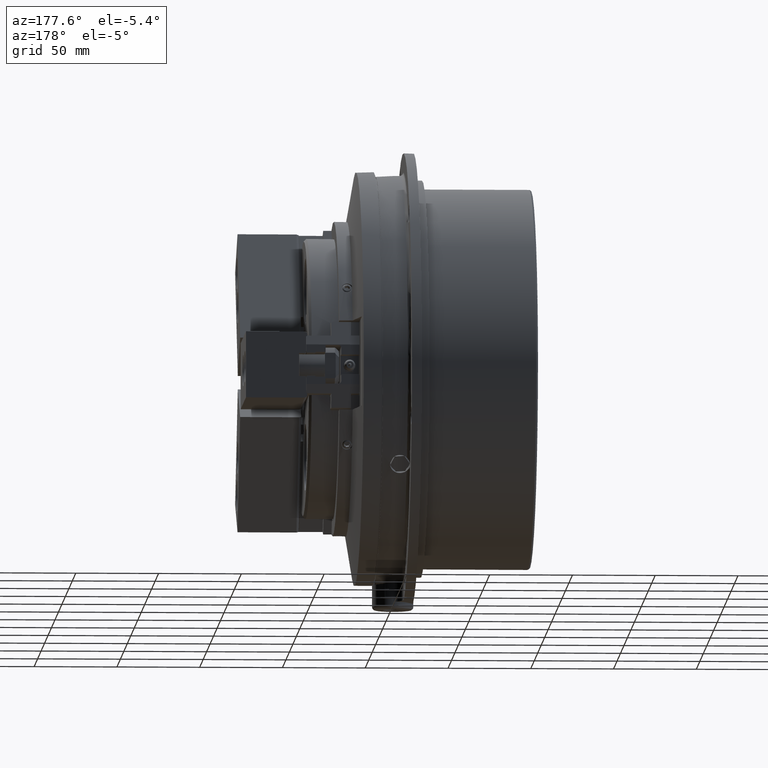
[diagram: clean part render]
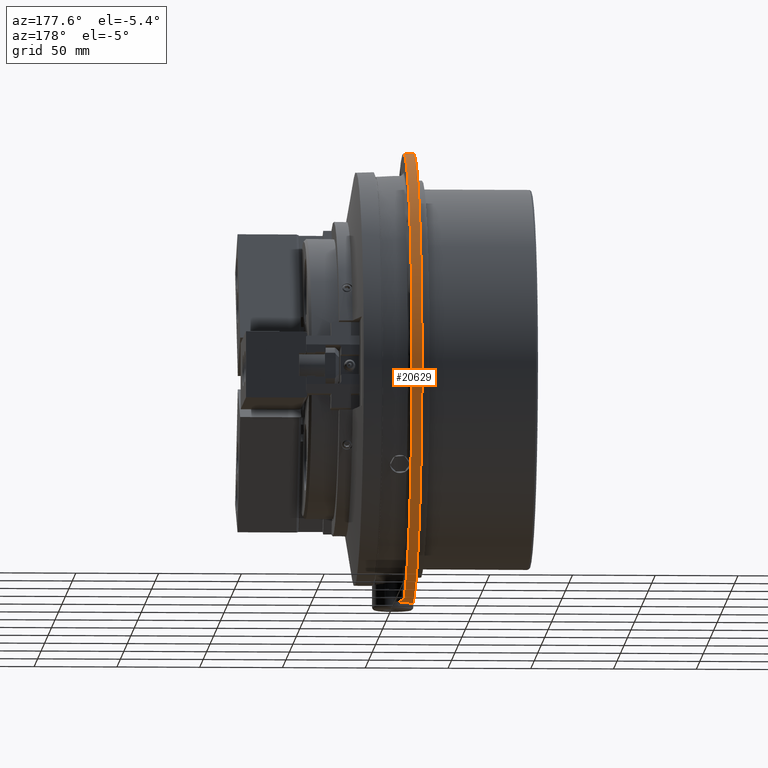
[diagram: same view with one face highlighted and labeled with its STEP entity id]
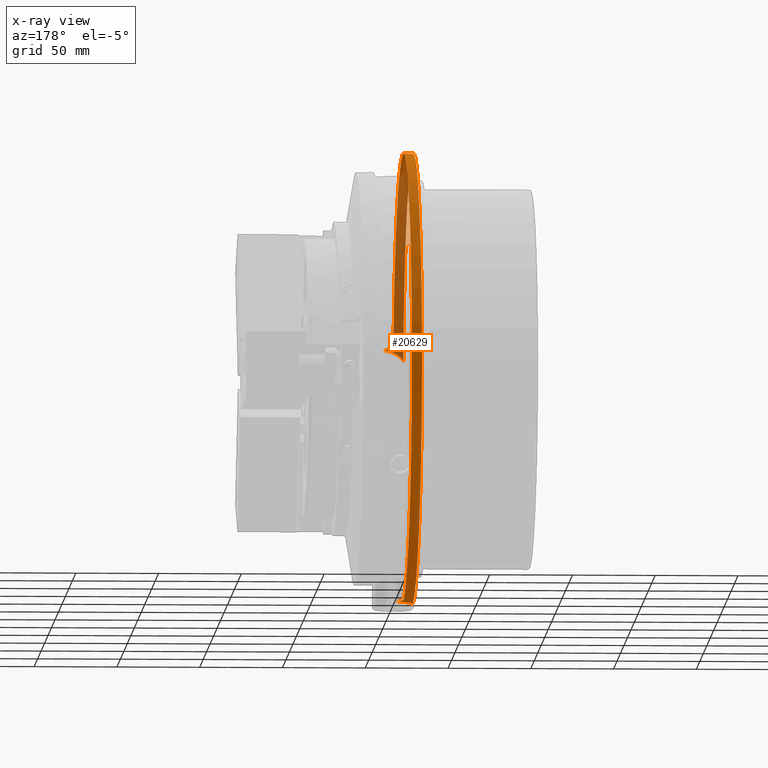
[diagram: x-ray of the same camera — body ghosted, the highlighted face saturated]
A machine part, auxiliary view. The second image highlights one B-rep face of the part: STEP entity #20629.
The next image is the same camera in x-ray: the body ghosted, the highlighted face saturated — about 29% of this face is hidden behind the body in this view.
In plain terms, the highlighted cylindrical surface (partial cylindrical patch) has radius 136.5 mm, axis along (1, 0, 0).
Its self-contained STEP definition (entity closure, byte-faithful):
#280=CYLINDRICAL_SURFACE('',#22048,136.5);
#577=B_SPLINE_CURVE_WITH_KNOTS('',3,(#31600,#31601,#31602,#31603,#31604,
#31605,#31606,#31607,#31608,#31609,#31610,#31611,#31612,#31613,#31614,#31615,
#31616,#31617,#31618,#31619,#31620,#31621,#31622,#31623,#31624,#31625,#31626,
#31627,#31628,#31629,#31630,#31631,#31632,#31633,#31634,#31635,#31636,#31637,
#31638,#31639,#31640,#31641,#31642,#31643,#31644,#31645,#31646,#31647,#31648,
#31649),.UNSPECIFIED.,.F.,.F.,(4,2,1,2,2,2,2,1,2,1,2,2,1,2,2,1,2,2,2,1,
2,1,2,2,1,1,2,2,1,4),(0.,0.06250000000001,0.12500000000002,0.18750000000003,
0.25000000000004,0.25781250000004,0.26562500000004,0.281250000000041,0.31250000000004,
0.375000000000039,0.437500000000039,0.500000000000038,0.515625000000038,
0.523437500000037,0.531250000000037,0.562500000000035,0.593750000000033,
0.609375000000033,0.617187500000032,0.625000000000032,0.687500000000026,
0.75000000000002,0.812500000000015,0.843750000000012,0.85937500000001,0.86718750000001,
0.871093750000009,0.875000000000009,0.937500000000004,1.),.UNSPECIFIED.);
#589=B_SPLINE_CURVE_WITH_KNOTS('',3,(#32045,#32046,#32047,#32048,#32049,
#32050,#32051,#32052,#32053,#32054,#32055,#32056,#32057,#32058,#32059,#32060,
#32061,#32062,#32063,#32064,#32065,#32066,#32067,#32068,#32069,#32070,#32071,
#32072,#32073,#32074,#32075,#32076,#32077,#32078,#32079,#32080,#32081,#32082),
 .UNSPECIFIED.,.F.,.F.,(4,2,1,2,2,2,1,1,1,1,2,2,1,1,2,1,1,1,2,1,2,2,1,1,
1,4),(0.,0.0624999999999924,0.0781249999999902,0.0859374999999898,0.0937499999999894,
0.124999999999986,0.187499999999981,0.249999999999975,0.312499999999969,
0.374999999999963,0.437499999999957,0.445312499999957,0.453124999999957,
0.468749999999957,0.499999999999955,0.562499999999953,0.62499999999995,
0.687499999999948,0.749999999999945,0.781249999999944,0.796874999999945,
0.804687499999945,0.812499999999946,0.874999999999964,0.937499999999982,
1.),.UNSPECIFIED.);
#590=B_SPLINE_CURVE_WITH_KNOTS('',3,(#32084,#32085,#32086,#32087,#32088,
#32089,#32090,#32091,#32092,#32093,#32094,#32095,#32096,#32097,#32098,#32099,
#32100,#32101,#32102,#32103,#32104,#32105,#32106,#32107,#32108,#32109,#32110,
#32111,#32112,#32113,#32114,#32115,#32116,#32117,#32118,#32119,#32120,#32121,
#32122,#32123,#32124,#32125,#32126,#32127,#32128,#32129,#32130,#32131,#32132,
#32133),.UNSPECIFIED.,.F.,.F.,(4,1,2,1,2,2,2,1,2,1,2,2,2,2,2,2,2,1,1,2,
2,2,1,2,1,1,2,2,1,4),(0.,0.0312500000000149,0.0625000000000298,0.125000000000059,
0.187500000000089,0.203125000000095,0.210937500000098,0.2187500000001,0.250000000000102,
0.312500000000103,0.375000000000105,0.406250000000104,0.414062500000103,
0.421875000000103,0.437500000000098,0.500000000000088,0.562500000000077,
0.593750000000071,0.609375000000067,0.617187500000066,0.625000000000065,
0.687500000000048,0.75000000000003,0.812500000000013,0.82812500000001,0.835937500000009,
0.843750000000007,0.875000000000005,0.937500000000003,1.),.UNSPECIFIED.);
#591=B_SPLINE_CURVE_WITH_KNOTS('',3,(#32137,#32138,#32139,#32140,#32141,
#32142,#32143,#32144,#32145,#32146,#32147,#32148,#32149,#32150,#32151,#32152,
#32153,#32154,#32155,#32156,#32157,#32158,#32159,#32160,#32161,#32162,#32163,
#32164,#32165,#32166,#32167,#32168,#32169,#32170,#32171,#32172,#32173,#32174,
#32175,#32176,#32177,#32178,#32179,#32180,#32181,#32182,#32183,#32184,#32185,
#32186),.UNSPECIFIED.,.F.,.F.,(4,2,2,2,1,2,2,2,1,2,2,1,2,2,2,1,2,1,2,2,
2,1,2,2,2,2,1,1,4),(0.,0.0625000000000052,0.12500000000001,0.187500000000016,
0.203125000000018,0.210937500000019,0.21875000000002,0.250000000000026,
0.312500000000036,0.375000000000046,0.406250000000052,0.421875000000055,
0.429687500000056,0.437500000000057,0.500000000000061,0.562500000000065,
0.625000000000069,0.640625000000069,0.648437500000069,0.656250000000068,
0.687500000000063,0.750000000000054,0.812500000000044,0.84375000000004,
0.859375000000038,0.867187500000037,0.875000000000035,0.937500000000017,
1.),.UNSPECIFIED.);
#4850=ORIENTED_EDGE('',*,*,#10607,.T.);
#4851=ORIENTED_EDGE('',*,*,#10622,.F.);
#4852=ORIENTED_EDGE('',*,*,#10623,.T.);
#4853=ORIENTED_EDGE('',*,*,#10624,.F.);
#4854=ORIENTED_EDGE('',*,*,#10625,.T.);
#4855=ORIENTED_EDGE('',*,*,#10572,.F.);
#10572=EDGE_CURVE('',#13483,#13484,#577,.T.);
#10607=EDGE_CURVE('',#13483,#13510,#15519,.T.);
#10622=EDGE_CURVE('',#13523,#13510,#589,.T.);
#10623=EDGE_CURVE('',#13523,#13524,#590,.T.);
#10624=EDGE_CURVE('',#13525,#13524,#15531,.T.);
#10625=EDGE_CURVE('',#13525,#13484,#591,.T.);
#13483=VERTEX_POINT('',#31599);
#13484=VERTEX_POINT('',#31650);
#13510=VERTEX_POINT('',#32013);
#13523=VERTEX_POINT('',#32083);
#13524=VERTEX_POINT('',#32134);
#13525=VERTEX_POINT('',#32136);
#15519=CIRCLE('',#22032,136.5);
#15531=CIRCLE('',#22049,136.5);
#16330=EDGE_LOOP('',(#4850,#4851,#4852,#4853,#4854,#4855));
#18082=FACE_BOUND('',#16330,.T.);
#20629=ADVANCED_FACE('',(#18082),#280,.T.);
#22032=AXIS2_PLACEMENT_3D('',#32012,#24321,#24322);
#22048=AXIS2_PLACEMENT_3D('',#32044,#24356,#24357);
#22049=AXIS2_PLACEMENT_3D('',#32135,#24358,#24359);
#24321=DIRECTION('',(1.,0.,0.));
#24322=DIRECTION('',(0.,0.,-1.));
#24356=DIRECTION('',(1.,0.,0.));
#24357=DIRECTION('',(0.,0.,-1.));
#24358=DIRECTION('',(1.,0.,0.));
#24359=DIRECTION('',(0.,0.,-1.));
#31599=CARTESIAN_POINT('',(-66.,3.5,-136.455120827334));
#31600=CARTESIAN_POINT('',(-66.,3.5,-136.455120827325));
#31601=CARTESIAN_POINT('',(-65.9053817846699,3.82440530970329,-136.446800006699));
#31602=CARTESIAN_POINT('',(-65.7982943017893,4.14270983968721,-136.437478911515));
#31603=CARTESIAN_POINT('',(-65.5599603115382,4.76750572554841,-136.417075858203));
#31604=CARTESIAN_POINT('',(-65.2974639836781,5.38048681518573,-136.394911647739));
#31605=CARTESIAN_POINT('',(-64.9872161752303,5.97013513054833,-136.369685619437));
#31606=CARTESIAN_POINT('',(-64.6529153497794,6.54803995930728,-136.343158398625));
#31607=CARTESIAN_POINT('',(-64.4737397896507,6.83112128159731,-136.329243928359));
#31608=CARTESIAN_POINT('',(-64.2582683010641,7.14280785213542,-136.31299093855));
#31609=CARTESIAN_POINT('',(-64.2341336547172,7.17734536844713,-136.311176735753));
#31610=CARTESIAN_POINT('',(-64.185475759858,7.24623086479653,-136.307532175877));
#31611=CARTESIAN_POINT('',(-64.1609386785579,7.28059781929191,-136.30570079365));
#31612=CARTESIAN_POINT('',(-64.0868835563718,7.38321731110237,-136.30019367541));
#31613=CARTESIAN_POINT('',(-63.9369458740853,7.58660940484722,-136.289123574838));
#31614=CARTESIAN_POINT('',(-63.7815799105731,7.78451673431412,-136.277907732336));
#31615=CARTESIAN_POINT('',(-63.4637180499607,8.17313073465881,-136.255338540382));
#31616=CARTESIAN_POINT('',(-63.0209124032886,8.67210455040138,-136.224880305094));
#31617=CARTESIAN_POINT('',(-62.5406927825443,9.13333038013077,-136.194278189737));
#31618=CARTESIAN_POINT('',(-62.0416843799146,9.57561848510378,-136.163896338508));
#31619=CARTESIAN_POINT('',(-61.7827866321229,9.78729450600297,-136.14881521801));
#31620=CARTESIAN_POINT('',(-61.447138536497,10.0397800754048,-136.130288252563));
#31621=CARTESIAN_POINT('',(-61.3455407323146,10.1146160953705,-136.124754542407));
#31622=CARTESIAN_POINT('',(-61.242575442485,10.1880754576995,-136.119262831835));
#31623=CARTESIAN_POINT('',(-61.1736264537736,10.2367408912009,-136.115611637095));
#31624=CARTESIAN_POINT('',(-61.1390106193209,10.260911645658,-136.11379162519));
#31625=CARTESIAN_POINT('',(-60.9654219648028,10.3808180610527,-136.104731257044));
#31626=CARTESIAN_POINT('',(-60.6840577602138,10.5668646058364,-136.090469437396));
#31627=CARTESIAN_POINT('',(-60.3954694229247,10.741342130641,-136.076745727517));
#31628=CARTESIAN_POINT('',(-60.1763134425969,10.8678547669519,-136.06668042693));
#31629=CARTESIAN_POINT('',(-60.102808855661,10.9093011713589,-136.063363242312));
#31630=CARTESIAN_POINT('',(-59.9918711133895,10.9703811490105,-136.058447568167));
#31631=CARTESIAN_POINT('',(-59.9547852227353,10.9905555405475,-136.056819344102));
#31632=CARTESIAN_POINT('',(-59.8804986071865,11.0304811440682,-136.053588290988));
#31633=CARTESIAN_POINT('',(-59.5455702690422,11.2083061874212,-136.039157408589));
#31634=CARTESIAN_POINT('',(-59.2049393061998,11.3696999183477,-136.025722417955));
#31635=CARTESIAN_POINT('',(-58.590590212606,11.6313348724222,-136.003600263542));
#31636=CARTESIAN_POINT('',(-57.9674571548471,11.8676796003961,-135.983240171088));
#31637=CARTESIAN_POINT('',(-57.3268650167383,12.0537904964323,-135.966770354111));
#31638=CARTESIAN_POINT('',(-56.8397881472985,12.1742998698624,-135.956015126744));
#31639=CARTESIAN_POINT('',(-56.676322412607,12.2112868815678,-135.95269626501));
#31640=CARTESIAN_POINT('',(-56.4294405627781,12.2619278986614,-135.94813500547));
#31641=CARTESIAN_POINT('',(-56.3055786926323,12.2860381465689,-135.945958639892));
#31642=CARTESIAN_POINT('',(-56.160330018436,12.3120303110676,-135.943605957951));
#31643=CARTESIAN_POINT('',(-56.0979205443615,12.322709734997,-135.94263803972));
#31644=CARTESIAN_POINT('',(-56.0562785723286,12.3297268524662,-135.94200178074));
#31645=CARTESIAN_POINT('',(-56.0354360160752,12.3331847585307,-135.941688107048));
#31646=CARTESIAN_POINT('',(-55.6810860630791,12.3910508806702,-135.936436795419));
#31647=CARTESIAN_POINT('',(-55.0118048100236,12.4726225649174,-135.928972483786));
#31648=CARTESIAN_POINT('',(-54.3380257258228,12.5,-135.92645070037));
#31649=CARTESIAN_POINT('',(-54.,12.5,-135.92645070037));
#31650=CARTESIAN_POINT('',(-54.,12.5,-135.926450700369));
#32012=CARTESIAN_POINT('',(-66.,0.,0.));
#32013=CARTESIAN_POINT('',(-66.,-134.373546503762,24.));
#32044=CARTESIAN_POINT('',(35.59,0.,0.));
#32045=CARTESIAN_POINT('',(-54.,-133.162494719797,30.));
#32046=CARTESIAN_POINT('',(-54.2902048640479,-133.162494719797,30.));
#32047=CARTESIAN_POINT('',(-54.5811495456789,-133.164391218069,29.991585741061));
#32048=CARTESIAN_POINT('',(-54.9457742043445,-133.169175129318,29.9703322364109));
#32049=CARTESIAN_POINT('',(-55.05523244589,-133.170791376154,29.9631503278835));
#32050=CARTESIAN_POINT('',(-55.1647976686931,-133.172680670827,29.9547514093857));
#32051=CARTESIAN_POINT('',(-55.2378650115084,-133.174001048101,29.9488806784588));
#32052=CARTESIAN_POINT('',(-55.2744232836026,-133.174691927885,29.9458083993852));
#32053=CARTESIAN_POINT('',(-55.4569853203041,-133.178292993821,29.9297919760182));
#32054=CARTESIAN_POINT('',(-55.6024735628524,-133.181645895358,29.9148708865419));
#32055=CARTESIAN_POINT('',(-56.0372778981372,-133.193094366687,29.8638716051095));
#32056=CARTESIAN_POINT('',(-56.6125922810165,-133.212063586235,29.7792546247878));
#32057=CARTESIAN_POINT('',(-57.4625602355324,-133.251262639433,29.6034602686837));
#32058=CARTESIAN_POINT('',(-58.2996611715927,-133.300900374417,29.3792677603117));
#32059=CARTESIAN_POINT('',(-59.1239040318785,-133.360725688101,29.1066570628635));
#32060=CARTESIAN_POINT('',(-59.6647481077755,-133.407267967556,28.8922968272841));
#32061=CARTESIAN_POINT('',(-59.9664921045038,-133.435292873573,28.7623509802009));
#32062=CARTESIAN_POINT('',(-59.9999925019635,-133.438433122396,28.7477789020591));
#32063=CARTESIAN_POINT('',(-60.0668898601085,-133.4447615671,28.7183884690889));
#32064=CARTESIAN_POINT('',(-60.1670074939878,-133.454319184335,28.6739657892546));
#32065=CARTESIAN_POINT('',(-60.3990230498712,-133.477070521422,28.5679628238186));
#32066=CARTESIAN_POINT('',(-60.5951855108315,-133.497328568319,28.4731045126109));
#32067=CARTESIAN_POINT('',(-60.9839479362194,-133.538816245135,28.2781225986302));
#32068=CARTESIAN_POINT('',(-61.4928042554872,-133.596722599222,28.0041154727708));
#32069=CARTESIAN_POINT('',(-62.2281419098772,-133.690801795563,27.5517176011763));
#32070=CARTESIAN_POINT('',(-62.9357758775277,-133.791610815047,27.0582051260524));
#32071=CARTESIAN_POINT('',(-63.3890382442511,-133.863009972886,26.7016894014051));
#32072=CARTESIAN_POINT('',(-63.7219694876067,-133.918032403961,26.4238436080763));
#32073=CARTESIAN_POINT('',(-63.8866801001314,-133.94591204397,26.282304266511));
#32074=CARTESIAN_POINT('',(-64.048732547927,-133.974327053804,26.1367973750843));
#32075=CARTESIAN_POINT('',(-64.1293130328244,-133.988622415584,26.0633782309663));
#32076=CARTESIAN_POINT('',(-64.1561043616503,-133.993403171375,26.0387891068007));
#32077=CARTESIAN_POINT('',(-64.2094745381196,-134.002982296338,25.9894472292578));
#32078=CARTESIAN_POINT('',(-64.4487459624684,-134.046178686637,25.7666155789433));
#32079=CARTESIAN_POINT('',(-64.8855578579332,-134.129276351794,25.3322746079003));
#32080=CARTESIAN_POINT('',(-65.4646775727389,-134.249837420414,24.6856777731363));
#32081=CARTESIAN_POINT('',(-65.8257617587078,-134.332053041204,24.2323176550563));
#32082=CARTESIAN_POINT('',(-66.,-134.373546503767,24.));
#32083=CARTESIAN_POINT('',(-54.,-133.162494719793,30.));
#32084=CARTESIAN_POINT('',(-54.,-133.162494719797,30.));
#32085=CARTESIAN_POINT('',(-54.1006228308508,-133.162494719797,30.));
#32086=CARTESIAN_POINT('',(-54.3009814652012,-133.161355173354,30.0050588265373));
#32087=CARTESIAN_POINT('',(-54.4996053442066,-133.157985323053,30.0200107923264));
#32088=CARTESIAN_POINT('',(-54.7962590230909,-133.151278435906,30.0497498150452));
#32089=CARTESIAN_POINT('',(-55.1883844816089,-133.137939908459,30.1088627046829));
#32090=CARTESIAN_POINT('',(-55.5737304021199,-133.115791318547,30.20661736093));
#32091=CARTESIAN_POINT('',(-55.8124035657495,-133.099091116598,30.2800622664066));
#32092=CARTESIAN_POINT('',(-55.8600295333271,-133.095607796931,30.2953701446358));
#32093=CARTESIAN_POINT('',(-55.9313037542118,-133.090164683578,30.3192699657652));
#32094=CARTESIAN_POINT('',(-55.9550498731891,-133.088312684716,30.3273984803283));
#32095=CARTESIAN_POINT('',(-56.0023661211202,-133.084545103395,30.3439273409345));
#32096=CARTESIAN_POINT('',(-56.1202618583692,-133.074963908864,30.3859434602757));
#32097=CARTESIAN_POINT('',(-56.2361982169473,-133.064575682933,30.4314025339489));
#32098=CARTESIAN_POINT('',(-56.5107624276855,-133.03811010597,30.5469721393265));
#32099=CARTESIAN_POINT('',(-56.867044365682,-132.998740722739,30.7182814497118));
#32100=CARTESIAN_POINT('',(-57.2041021567297,-132.951164953291,30.9233040253267));
#32101=CARTESIAN_POINT('',(-57.4496172132728,-132.912289378106,31.0898147443912));
#32102=CARTESIAN_POINT('',(-57.5302403816547,-132.898797511687,31.147445995879));
#32103=CARTESIAN_POINT('',(-57.6294762279237,-132.881245562847,31.2221846356692));
#32104=CARTESIAN_POINT('',(-57.6492461950825,-132.877700794228,31.2372674229882));
#32105=CARTESIAN_POINT('',(-57.6886309330619,-132.870541894118,31.2677044437068));
#32106=CARTESIAN_POINT('',(-57.7082212934335,-132.866932158442,31.2830399767157));
#32107=CARTESIAN_POINT('',(-57.7666141098435,-132.856025848438,31.3293377089678));
#32108=CARTESIAN_POINT('',(-57.8050694685913,-132.848646540533,31.3606149857714));
#32109=CARTESIAN_POINT('',(-57.9950099176085,-132.811209584916,31.5190350040332));
#32110=CARTESIAN_POINT('',(-58.139503514535,-132.779534578152,31.6522633395775));
#32111=CARTESIAN_POINT('',(-58.4140382759953,-132.712714606522,31.9312692994894));
#32112=CARTESIAN_POINT('',(-58.5440781860069,-132.677569551346,32.0770480640011));
#32113=CARTESIAN_POINT('',(-58.7283299118714,-132.622162665964,32.3050783692103));
#32114=CARTESIAN_POINT('',(-58.817749009557,-132.59378578593,32.4214381747624));
#32115=CARTESIAN_POINT('',(-58.9172910559305,-132.559469709171,32.5613270964183));
#32116=CARTESIAN_POINT('',(-58.9589196058479,-132.544499417958,32.6221721323878));
#32117=CARTESIAN_POINT('',(-58.9864415786931,-132.534460200242,32.6629346511102));
#32118=CARTESIAN_POINT('',(-59.000091811133,-132.529409414773,32.6834222381088));
#32119=CARTESIAN_POINT('',(-59.1218158812686,-132.483716911978,32.8685790787642));
#32120=CARTESIAN_POINT('',(-59.2208845198171,-132.441857790553,33.0368839016276));
#32121=CARTESIAN_POINT('',(-59.4015206136778,-132.355646178222,33.3805979228624));
#32122=CARTESIAN_POINT('',(-59.5646508209158,-132.266940961242,33.7314183393662));
#32123=CARTESIAN_POINT('',(-59.6932603512064,-132.173128053553,34.0962038123429));
#32124=CARTESIAN_POINT('',(-59.7627071310773,-132.112827371412,34.3286054158719));
#32125=CARTESIAN_POINT('',(-59.7827193174896,-132.09461187874,34.3986574319385));
#32126=CARTESIAN_POINT('',(-59.8077457196961,-132.070070414462,34.4927279516675));
#32127=CARTESIAN_POINT('',(-59.8197039701735,-132.057714271378,34.5399869448316));
#32128=CARTESIAN_POINT('',(-59.8488382253046,-132.026786721402,34.6581467436214));
#32129=CARTESIAN_POINT('',(-59.869768589737,-132.001870297621,34.7529264604366));
#32130=CARTESIAN_POINT('',(-59.9255439344245,-131.92659608518,35.0380062776855));
#32131=CARTESIAN_POINT('',(-59.9812340508667,-131.824831573964,35.4200840907665));
#32132=CARTESIAN_POINT('',(-60.,-131.720226202719,35.8060391876294));
#32133=CARTESIAN_POINT('',(-60.,-131.667194091771,36.));
#32134=CARTESIAN_POINT('',(-60.,-131.667194091771,36.));
#32135=CARTESIAN_POINT('',(-60.,0.,0.));
#32136=CARTESIAN_POINT('',(-60.,18.5,-135.240526470433));
#32137=CARTESIAN_POINT('',(-60.,18.5,-135.240526470433));
#32138=CARTESIAN_POINT('',(-60.,18.3030780368888,-135.267464078654));
#32139=CARTESIAN_POINT('',(-59.9903300415029,18.1077249196033,-135.293749036871));
#32140=CARTESIAN_POINT('',(-59.9522786679523,17.7200561533844,-135.345069508042));
#32141=CARTESIAN_POINT('',(-59.9238955239317,17.5277407863214,-135.370104914854));
#32142=CARTESIAN_POINT('',(-59.8484945650627,17.1461397858445,-135.41896799258));
#32143=CARTESIAN_POINT('',(-59.8014775883612,16.9568540033351,-135.44279561863));
#32144=CARTESIAN_POINT('',(-59.7307764360405,16.7221912220155,-135.471844149077));
#32145=CARTESIAN_POINT('',(-59.7086693035092,16.6519385649792,-135.480503467371));
#32146=CARTESIAN_POINT('',(-59.6852026525715,16.5819076782257,-135.489080333582));
#32147=CARTESIAN_POINT('',(-59.6692542274298,16.5352700286233,-135.494779962069));
#32148=CARTESIAN_POINT('',(-59.6611225031848,16.51196059374,-135.49762250915));
#32149=CARTESIAN_POINT('',(-59.6197715595181,16.3957408787519,-135.511765000451));
#32150=CARTESIAN_POINT('',(-59.5845274861476,16.3039433458497,-135.522838536052));
#32151=CARTESIAN_POINT('',(-59.472432189755,16.0320181897678,-135.555367753315));
#32152=CARTESIAN_POINT('',(-59.306033623428,15.6786813850255,-135.596898922897));
#32153=CARTESIAN_POINT('',(-59.106350773823,15.3435039624423,-135.635002067173));
#32154=CARTESIAN_POINT('',(-58.9439723727861,15.099013592759,-135.662362184312));
#32155=CARTESIAN_POINT('',(-58.887739859015,15.0186676006439,-135.671279083972));
#32156=CARTESIAN_POINT('',(-58.800180113841,14.899904178256,-135.684355920916));
#32157=CARTESIAN_POINT('',(-58.7555971240974,14.8409615639542,-135.69081968715));
#32158=CARTESIAN_POINT('',(-58.709796300669,14.7826850383744,-135.697172416931));
#32159=CARTESIAN_POINT('',(-58.6789900706493,14.7439830090259,-135.701382984565));
#32160=CARTESIAN_POINT('',(-58.6634424677046,14.724696545514,-135.703477048608));
#32161=CARTESIAN_POINT('',(-58.5226580407388,14.5522511577594,-135.722163843553));
#32162=CARTESIAN_POINT('',(-58.3909223738299,14.406329337192,-135.737714542084));
#32163=CARTESIAN_POINT('',(-58.1146799528712,14.1287590235752,-135.766887135758));
#32164=CARTESIAN_POINT('',(-57.8256635880562,13.8654652079414,-135.794130279527));
#32165=CARTESIAN_POINT('',(-57.5111845364274,13.6306546219451,-135.81777312024));
#32166=CARTESIAN_POINT('',(-57.306472112322,13.493037248075,-135.831471724596));
#32167=CARTESIAN_POINT('',(-57.2444447360058,13.4524390711829,-135.835500246571));
#32168=CARTESIAN_POINT('',(-57.1814866585553,13.4128831125691,-135.839407901621));
#32169=CARTESIAN_POINT('',(-57.1393064495939,13.3867455959547,-135.841986200157));
#32170=CARTESIAN_POINT('',(-57.118142181707,13.3738120468459,-135.843260106597));
#32171=CARTESIAN_POINT('',(-57.0120614421795,13.3098840657478,-135.849547761493));
#32172=CARTESIAN_POINT('',(-56.9262561481894,13.2610385070699,-135.854322894403));
#32173=CARTESIAN_POINT('',(-56.6660725236962,13.1212615256666,-135.867918441056));
#32174=CARTESIAN_POINT('',(-56.3117935946144,12.9528859025814,-135.884104230063));
#32175=CARTESIAN_POINT('',(-55.9430245201608,12.8199183504984,-135.896663061238));
#32176=CARTESIAN_POINT('',(-55.6609474748618,12.7336388039347,-135.904765469185));
#32177=CARTESIAN_POINT('',(-55.5660034549862,12.7071239495524,-135.907246286479));
#32178=CARTESIAN_POINT('',(-55.4221861731071,12.6707778024643,-135.910638060239));
#32179=CARTESIAN_POINT('',(-55.3740134255977,12.6592337144187,-135.911713708064));
#32180=CARTESIAN_POINT('',(-55.301399807523,12.6427844102248,-135.913244507963));
#32181=CARTESIAN_POINT('',(-55.2771250325887,12.6374435501144,-135.913741202384));
#32182=CARTESIAN_POINT('',(-55.2285617427341,12.6270746198126,-135.91470492061));
#32183=CARTESIAN_POINT('',(-55.0098747432559,12.5818032619172,-135.918909747559));
#32184=CARTESIAN_POINT('',(-54.5942329400403,12.5197106635692,-135.924640156218));
#32185=CARTESIAN_POINT('',(-54.1987974401778,12.5,-135.92645070037));
#32186=CARTESIAN_POINT('',(-54.,12.5,-135.92645070037));